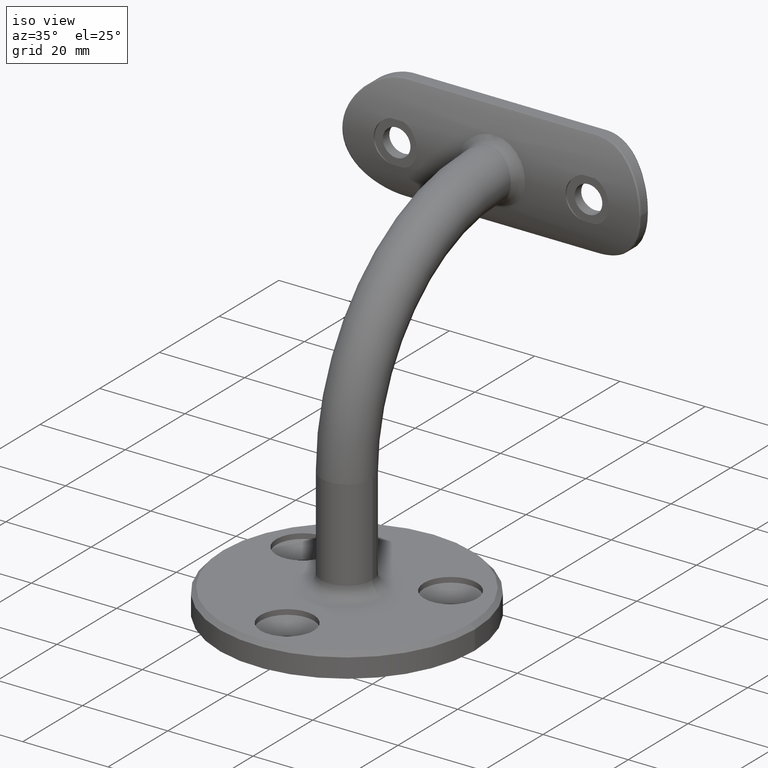
[diagram: clean part render]
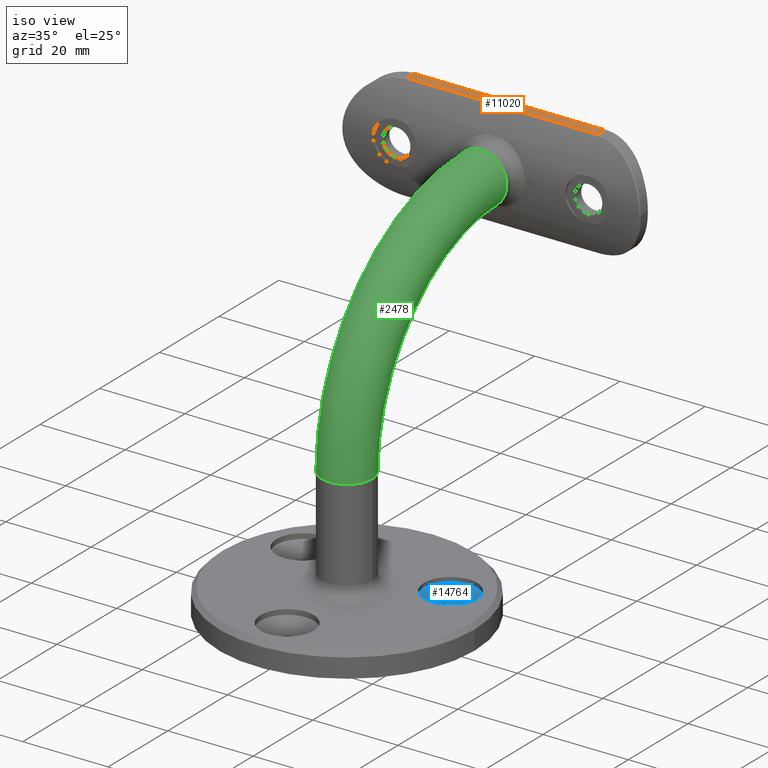
[diagram: same view with three faces highlighted in distinct colors, each labeled with its STEP entity id]
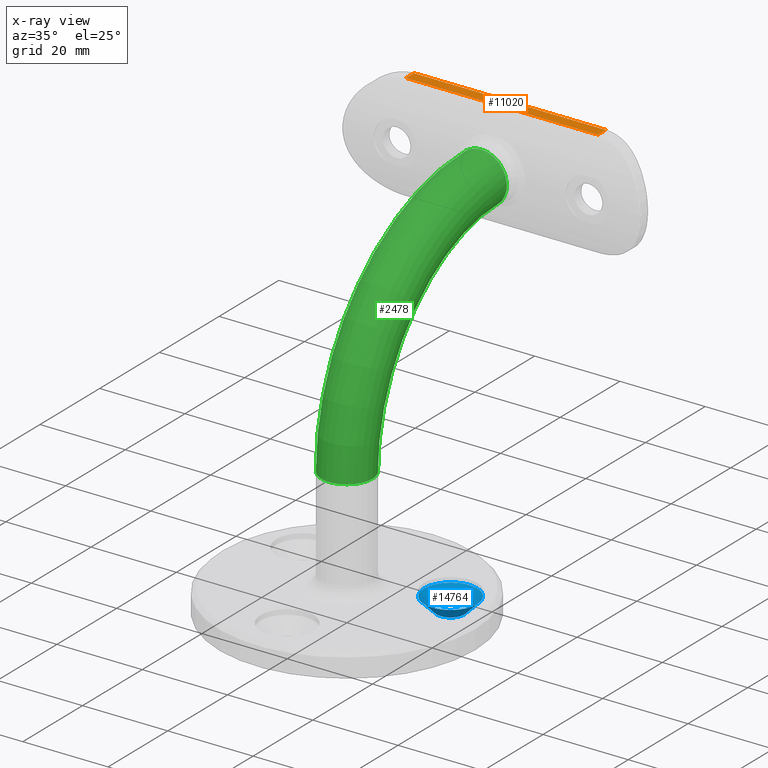
[diagram: x-ray of the same camera — body ghosted, the three highlighted faces saturated]
A machine part, iso view with three faces highlighted in distinct colors.
The next image is the same camera in x-ray (body ghosted, the three faces saturated) — at least one of them is partly hidden behind the body in this view.
Their STEP definitions:

[orange] entity #11020 — the highlighted planar face has unit normal (0, 0, -1).
#13 = DIRECTION ( 'NONE',  ( -1.000000000000000000, 0.000000000000000000, -0.000000000000000000 ) ) ;
#140 = LINE ( 'NONE', #11763, #13965 ) ;
#185 = DIRECTION ( 'NONE',  ( -0.000000000000000000, 1.000000000000000000, -0.000000000000000000 ) ) ;
#497 = CARTESIAN_POINT ( 'NONE',  ( -22.50000000000000711, 51.96982451880359122, 87.50000000000001421 ) ) ;
#1036 = ORIENTED_EDGE ( 'NONE', *, *, #11953, .T. ) ;
#1250 = VECTOR ( 'NONE', #185, 1000.000000000000000 ) ;
#1784 = CARTESIAN_POINT ( 'NONE',  ( 35.00000000000000000, 54.59204725131282032, 87.50000000000001421 ) ) ;
#2060 = LINE ( 'NONE', #9681, #1250 ) ;
#2188 = DIRECTION ( 'NONE',  ( 0.000000000000000000, -1.000000000000000000, 0.000000000000000000 ) ) ;
#2311 = CARTESIAN_POINT ( 'NONE',  ( 22.50000000000000355, 51.96982451880359122, 87.50000000000001421 ) ) ;
#2905 = CARTESIAN_POINT ( 'NONE',  ( 35.00000000000000000, 55.07720817156266691, 87.50000000000001421 ) ) ;
#3091 = VERTEX_POINT ( 'NONE', #16643 ) ;
#4431 = DIRECTION ( 'NONE',  ( -1.000000000000000000, 0.000000000000000000, 0.000000000000000000 ) ) ;
#4861 = EDGE_CURVE ( 'NONE', #9590, #12313, #140, .T. ) ;
#4891 = DIRECTION ( 'NONE',  ( 0.000000000000000000, 0.000000000000000000, -1.000000000000000000 ) ) ;
#5373 = AXIS2_PLACEMENT_3D ( 'NONE', #2905, #4891, #13 ) ;
#5637 = ORIENTED_EDGE ( 'NONE', *, *, #12228, .T. ) ;
#7235 = PLANE ( 'NONE',  #5373 ) ;
#7367 = CARTESIAN_POINT ( 'NONE',  ( -22.50000000000000711, 55.07720817156266691, 87.50000000000001421 ) ) ;
#9209 = ORIENTED_EDGE ( 'NONE', *, *, #4861, .T. ) ;
#9590 = VERTEX_POINT ( 'NONE', #497 ) ;
#9681 = CARTESIAN_POINT ( 'NONE',  ( 22.50000000000000355, 55.07720817156266691, 87.50000000000001421 ) ) ;
#10182 = LINE ( 'NONE', #7367, #13581 ) ;
#11020 = ADVANCED_FACE ( 'NONE', ( #11723 ), #7235, .F. ) ;
#11723 = FACE_OUTER_BOUND ( 'NONE', #16359, .T. ) ;
#11763 = CARTESIAN_POINT ( 'NONE',  ( 35.00000000000000000, 51.96982451880359122, 87.50000000000001421 ) ) ;
#11953 = EDGE_CURVE ( 'NONE', #12313, #12359, #2060, .T. ) ;
#12228 = EDGE_CURVE ( 'NONE', #3091, #9590, #10182, .T. ) ;
#12313 = VERTEX_POINT ( 'NONE', #2311 ) ;
#12359 = VERTEX_POINT ( 'NONE', #14458 ) ;
#12466 = EDGE_CURVE ( 'NONE', #12359, #3091, #14533, .T. ) ;
#13258 = VECTOR ( 'NONE', #4431, 1000.000000000000000 ) ;
#13511 = ORIENTED_EDGE ( 'NONE', *, *, #12466, .T. ) ;
#13581 = VECTOR ( 'NONE', #2188, 1000.000000000000000 ) ;
#13965 = VECTOR ( 'NONE', #15934, 1000.000000000000000 ) ;
#14458 = CARTESIAN_POINT ( 'NONE',  ( 22.50000000000000355, 54.59204725131282032, 87.50000000000001421 ) ) ;
#14533 = LINE ( 'NONE', #1784, #13258 ) ;
#15934 = DIRECTION ( 'NONE',  ( 1.000000000000000000, -0.000000000000000000, -0.000000000000000000 ) ) ;
#16359 = EDGE_LOOP ( 'NONE', ( #1036, #13511, #5637, #9209 ) ) ;
#16643 = CARTESIAN_POINT ( 'NONE',  ( -22.50000000000000711, 54.59204725131282743, 87.50000000000001421 ) ) ;

[blue] entity #14764 — the highlighted conical surface has half-angle 45 deg.
#400 = AXIS2_PLACEMENT_3D ( 'NONE', #9020, #1189, #13239 ) ;
#748 = DIRECTION ( 'NONE',  ( 1.000000000000000000, 0.000000000000000000, 0.000000000000000000 ) ) ;
#1189 = DIRECTION ( 'NONE',  ( -0.000000000000000000, -0.000000000000000000, 1.000000000000000000 ) ) ;
#1263 = EDGE_LOOP ( 'NONE', ( #8463 ) ) ;
#1388 = EDGE_CURVE ( 'NONE', #8459, #8459, #11286, .T. ) ;
#2047 = AXIS2_PLACEMENT_3D ( 'NONE', #3568, #17075, #748 ) ;
#2616 = CARTESIAN_POINT ( 'NONE',  ( 23.57050807568879236, 9.999999999999964473, 4.299999999999999822 ) ) ;
#3568 = CARTESIAN_POINT ( 'NONE',  ( 17.32050807568879236, 9.999999999999964473, 1.300000000000004263 ) ) ;
#3831 = EDGE_LOOP ( 'NONE', ( #5089 ) ) ;
#4241 = EDGE_CURVE ( 'NONE', #10590, #10590, #13541, .T. ) ;
#5089 = ORIENTED_EDGE ( 'NONE', *, *, #1388, .F. ) ;
#7872 = FACE_BOUND ( 'NONE', #3831, .T. ) ;
#8459 = VERTEX_POINT ( 'NONE', #15551 ) ;
#8463 = ORIENTED_EDGE ( 'NONE', *, *, #4241, .T. ) ;
#9020 = CARTESIAN_POINT ( 'NONE',  ( 17.32050807568879236, 9.999999999999964473, 4.299999999999999822 ) ) ;
#9558 = FACE_OUTER_BOUND ( 'NONE', #1263, .T. ) ;
#10590 = VERTEX_POINT ( 'NONE', #2616 ) ;
#11101 = CARTESIAN_POINT ( 'NONE',  ( 17.32050807568879236, 9.999999999999964473, 4.299999999999999822 ) ) ;
#11286 = CIRCLE ( 'NONE', #2047, 3.250000000000002665 ) ;
#11467 = CONICAL_SURFACE ( 'NONE', #400, 6.249999999999998224, 0.7853981633974482790 ) ;
#12345 = DIRECTION ( 'NONE',  ( 1.000000000000000000, 0.000000000000000000, 0.000000000000000000 ) ) ;
#13239 = DIRECTION ( 'NONE',  ( 1.000000000000000000, 0.000000000000000000, 0.000000000000000000 ) ) ;
#13541 = CIRCLE ( 'NONE', #15938, 6.249999999999998224 ) ;
#14764 = ADVANCED_FACE ( 'NONE', ( #7872, #9558 ), #11467, .F. ) ;
#14998 = DIRECTION ( 'NONE',  ( -0.000000000000000000, -0.000000000000000000, 1.000000000000000000 ) ) ;
#15551 = CARTESIAN_POINT ( 'NONE',  ( 20.57050807568879591, 9.999999999999964473, 1.300000000000004263 ) ) ;
#15938 = AXIS2_PLACEMENT_3D ( 'NONE', #11101, #14998, #12345 ) ;
#17075 = DIRECTION ( 'NONE',  ( -0.000000000000000000, -0.000000000000000000, 1.000000000000000000 ) ) ;

[green] entity #2478 — the highlighted toroidal blend (fillet) surface has major radius 45 mm and minor (blend) radius 6 mm.
#1254 = CARTESIAN_POINT ( 'NONE',  ( -6.000000000000000888, 45.00000000000001421, 75.00000000000001421 ) ) ;
#2241 = EDGE_CURVE ( 'NONE', #11642, #11642, #3721, .T. ) ;
#2478 = ADVANCED_FACE ( 'NONE', ( #13570, #12110 ), #8280, .T. ) ;
#2638 = CARTESIAN_POINT ( 'NONE',  ( 0.000000000000000000, 45.00000000000000000, 30.00000000000000000 ) ) ;
#2758 = AXIS2_PLACEMENT_3D ( 'NONE', #2638, #9347, #3572 ) ;
#3373 = CIRCLE ( 'NONE', #4916, 6.000000000000000888 ) ;
#3572 = DIRECTION ( 'NONE',  ( 0.000000000000000000, 0.000000000000000000, 1.000000000000000000 ) ) ;
#3721 = CIRCLE ( 'NONE', #12086, 6.000000000000000888 ) ;
#4690 = CARTESIAN_POINT ( 'NONE',  ( 0.000000000000000000, -6.938893903907228378E-15, 29.99999999999999289 ) ) ;
#4916 = AXIS2_PLACEMENT_3D ( 'NONE', #4690, #12588, #17291 ) ;
#5249 = ORIENTED_EDGE ( 'NONE', *, *, #2241, .T. ) ;
#5538 = EDGE_LOOP ( 'NONE', ( #6316 ) ) ;
#5762 = VERTEX_POINT ( 'NONE', #17116 ) ;
#6316 = ORIENTED_EDGE ( 'NONE', *, *, #6765, .F. ) ;
#6506 = CARTESIAN_POINT ( 'NONE',  ( 0.000000000000000000, 45.00000000000001421, 75.00000000000001421 ) ) ;
#6765 = EDGE_CURVE ( 'NONE', #5762, #5762, #3373, .T. ) ;
#8280 = TOROIDAL_SURFACE ( 'NONE', #2758, 45.00000000000000711, 6.000000000000000888 ) ;
#9347 = DIRECTION ( 'NONE',  ( -1.000000000000000000, -0.000000000000000000, -0.000000000000000000 ) ) ;
#11642 = VERTEX_POINT ( 'NONE', #1254 ) ;
#12086 = AXIS2_PLACEMENT_3D ( 'NONE', #6506, #14697, #15874 ) ;
#12110 = FACE_OUTER_BOUND ( 'NONE', #12850, .T. ) ;
#12588 = DIRECTION ( 'NONE',  ( 0.000000000000000000, 0.000000000000000000, -1.000000000000000000 ) ) ;
#12850 = EDGE_LOOP ( 'NONE', ( #5249 ) ) ;
#13570 = FACE_OUTER_BOUND ( 'NONE', #5538, .T. ) ;
#14697 = DIRECTION ( 'NONE',  ( 0.000000000000000000, -1.000000000000000000, 3.828568698926949435E-16 ) ) ;
#15874 = DIRECTION ( 'NONE',  ( -1.000000000000000000, 0.000000000000000000, 0.000000000000000000 ) ) ;
#17116 = CARTESIAN_POINT ( 'NONE',  ( -6.000000000000000888, -6.938893903907228378E-15, 29.99999999999999289 ) ) ;
#17291 = DIRECTION ( 'NONE',  ( -1.000000000000000000, 0.000000000000000000, 0.000000000000000000 ) ) ;